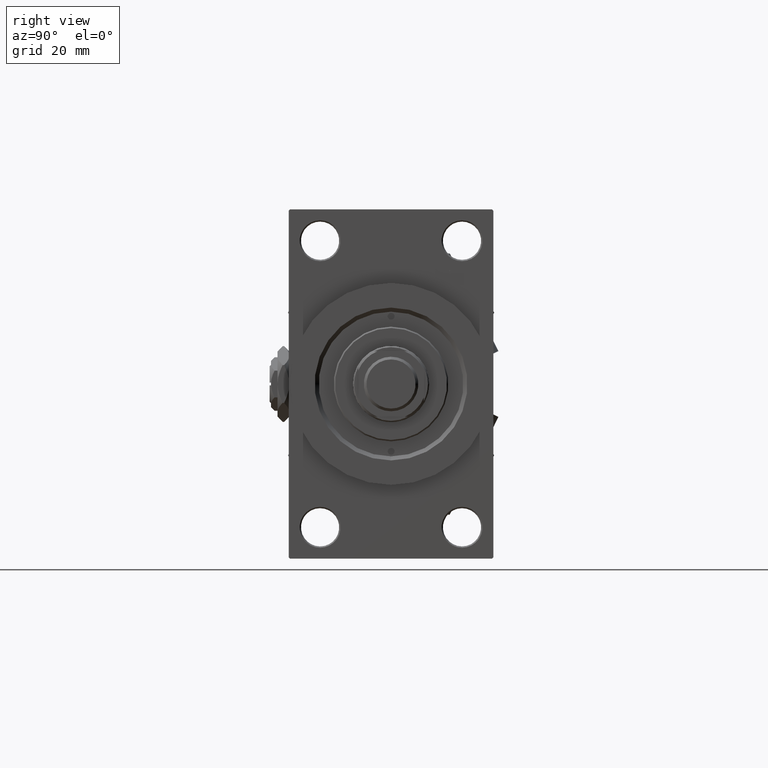
[diagram: clean part render]
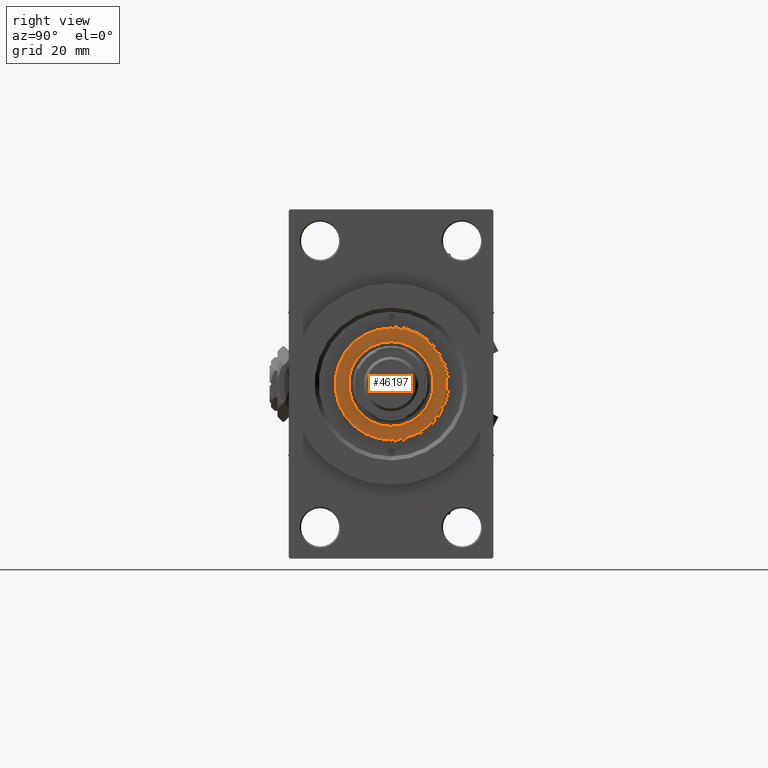
[diagram: same view with one face highlighted and labeled with its STEP entity id]
A machine part, right view. The second image highlights one B-rep face of the part: STEP entity #46197.
In plain terms, the highlighted planar face has unit normal (1, -0, -0).
Its self-contained STEP definition (entity closure, byte-faithful):
#1623 = EDGE_CURVE ( 'NONE', #51395, #49678, #10825, .T. ) ;
#2186 = DIRECTION ( 'NONE',  ( 0.000000000000000000, 0.000000000000000000, 1.000000000000000000 ) ) ;
#2911 = DIRECTION ( 'NONE',  ( 0.000000000000000000, 0.000000000000000000, 1.000000000000000000 ) ) ;
#3035 = CARTESIAN_POINT ( 'NONE',  ( 0.000000000000000000, 0.000000000000000000, 52.25999999999999801 ) ) ;
#6347 = CARTESIAN_POINT ( 'NONE',  ( 15.50000000000000000, 0.000000000000000000, 52.25999999999999801 ) ) ;
#10825 = CIRCLE ( 'NONE', #36737, 15.50000000000000000 ) ;
#11582 = DIRECTION ( 'NONE',  ( 0.000000000000000000, 0.000000000000000000, 1.000000000000000000 ) ) ;
#12874 = CARTESIAN_POINT ( 'NONE',  ( 0.000000000000000000, 0.000000000000000000, 52.25999999999999801 ) ) ;
#14351 = VERTEX_POINT ( 'NONE', #46668 ) ;
#17051 = DIRECTION ( 'NONE',  ( 1.000000000000000000, 0.000000000000000000, 0.000000000000000000 ) ) ;
#17366 = DIRECTION ( 'NONE',  ( 1.000000000000000000, 0.000000000000000000, 0.000000000000000000 ) ) ;
#17805 = ORIENTED_EDGE ( 'NONE', *, *, #36004, .T. ) ;
#18701 = VERTEX_POINT ( 'NONE', #27832 ) ;
#19701 = PLANE ( 'NONE',  #26989 ) ;
#22249 = EDGE_CURVE ( 'NONE', #49678, #51395, #45920, .T. ) ;
#23369 = FACE_OUTER_BOUND ( 'NONE', #45375, .T. ) ;
#26451 = DIRECTION ( 'NONE',  ( 1.000000000000000000, 0.000000000000000000, 0.000000000000000000 ) ) ;
#26789 = EDGE_LOOP ( 'NONE', ( #39468, #33203 ) ) ;
#26989 = AXIS2_PLACEMENT_3D ( 'NONE', #47695, #11582, #43749 ) ;
#27808 = FACE_BOUND ( 'NONE', #26789, .T. ) ;
#27832 = CARTESIAN_POINT ( 'NONE',  ( -20.50000000000000355, 0.000000000000000000, 52.25999999999999801 ) ) ;
#28325 = DIRECTION ( 'NONE',  ( 0.000000000000000000, 0.000000000000000000, 1.000000000000000000 ) ) ;
#32980 = AXIS2_PLACEMENT_3D ( 'NONE', #3035, #34694, #50384 ) ;
#33203 = ORIENTED_EDGE ( 'NONE', *, *, #22249, .F. ) ;
#34694 = DIRECTION ( 'NONE',  ( 0.000000000000000000, 0.000000000000000000, 1.000000000000000000 ) ) ;
#36004 = EDGE_CURVE ( 'NONE', #18701, #14351, #40104, .T. ) ;
#36737 = AXIS2_PLACEMENT_3D ( 'NONE', #41683, #2186, #17366 ) ;
#37347 = CARTESIAN_POINT ( 'NONE',  ( -15.50000000000000000, 1.898202538678397557E-15, 52.25999999999999801 ) ) ;
#38493 = CARTESIAN_POINT ( 'NONE',  ( 0.000000000000000000, 0.000000000000000000, 52.25999999999999801 ) ) ;
#38793 = CIRCLE ( 'NONE', #32980, 20.50000000000000355 ) ;
#39468 = ORIENTED_EDGE ( 'NONE', *, *, #1623, .F. ) ;
#40104 = CIRCLE ( 'NONE', #42592, 20.50000000000000355 ) ;
#41683 = CARTESIAN_POINT ( 'NONE',  ( 0.000000000000000000, 0.000000000000000000, 52.25999999999999801 ) ) ;
#42592 = AXIS2_PLACEMENT_3D ( 'NONE', #38493, #2911, #26451 ) ;
#43749 = DIRECTION ( 'NONE',  ( 1.000000000000000000, 0.000000000000000000, -0.000000000000000000 ) ) ;
#45375 = EDGE_LOOP ( 'NONE', ( #17805, #47597 ) ) ;
#45794 = AXIS2_PLACEMENT_3D ( 'NONE', #12874, #28325, #17051 ) ;
#45920 = CIRCLE ( 'NONE', #45794, 15.50000000000000000 ) ;
#46197 = ADVANCED_FACE ( 'NONE', ( #27808, #23369 ), #19701, .T. ) ;
#46668 = CARTESIAN_POINT ( 'NONE',  ( 20.50000000000000355, 2.541142108230758269E-15, 52.25999999999999801 ) ) ;
#47597 = ORIENTED_EDGE ( 'NONE', *, *, #49001, .T. ) ;
#47695 = CARTESIAN_POINT ( 'NONE',  ( 0.000000000000000000, 0.000000000000000000, 52.25999999999999801 ) ) ;
#49001 = EDGE_CURVE ( 'NONE', #14351, #18701, #38793, .T. ) ;
#49678 = VERTEX_POINT ( 'NONE', #37347 ) ;
#50384 = DIRECTION ( 'NONE',  ( 1.000000000000000000, 0.000000000000000000, 0.000000000000000000 ) ) ;
#51395 = VERTEX_POINT ( 'NONE', #6347 ) ;